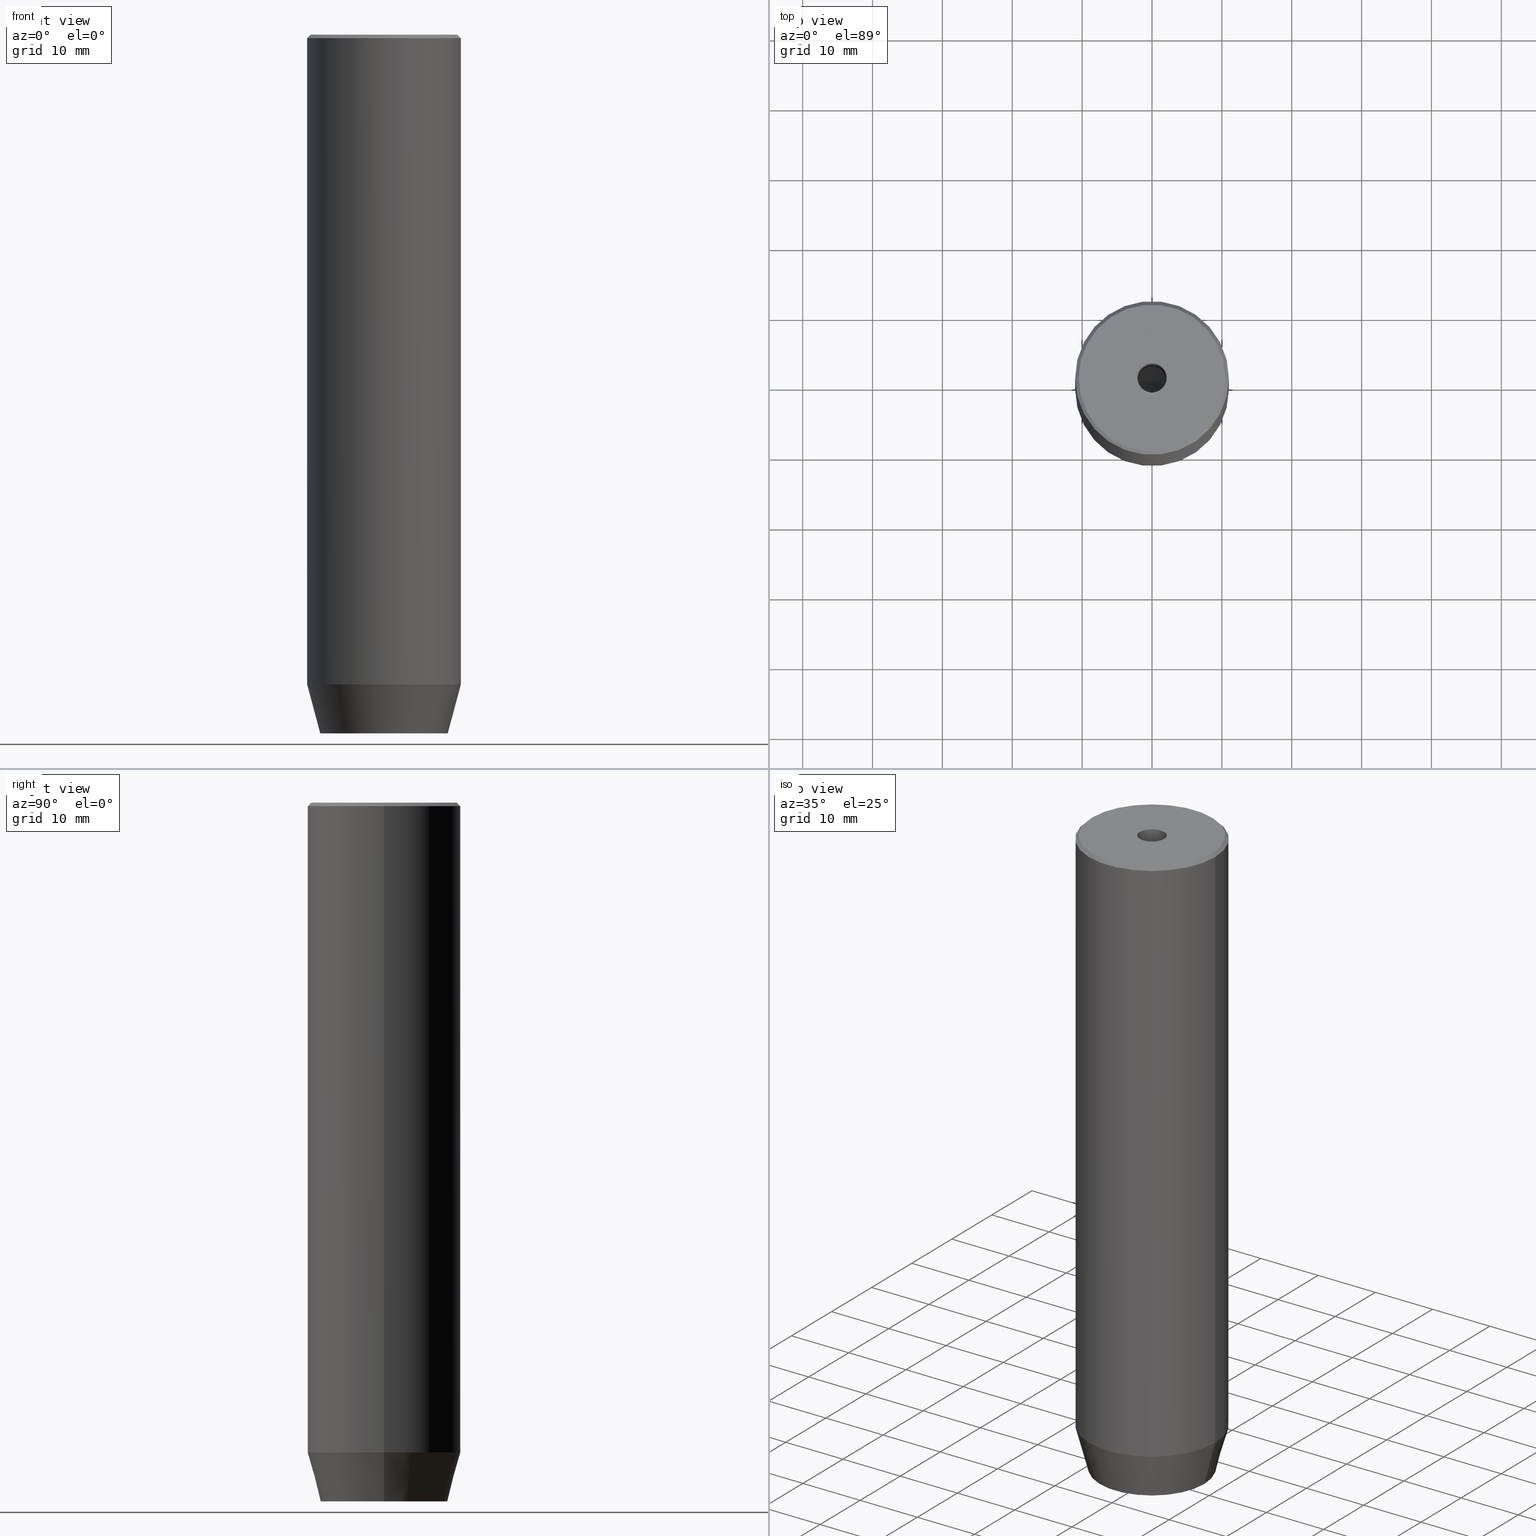
[diagram: canonical four-view strip — front | top / right | iso, engineering-drawing reading convention]
A machine part, canonical four-view strip (front | top / right | iso — engineering-drawing reading convention). The complete STEP part file that produces these views, byte-faithful:
ISO-10303-21;
HEADER;
FILE_DESCRIPTION (( 'STEP AP203' ),
    '1' );
FILE_NAME ('dd99.STEP',
    '2024-01-02T19:01:41',
    ( '' ),
    ( '' ),
    'SwSTEP 2.0',
    'SolidWorks 2019',
    '' );
FILE_SCHEMA (( 'CONFIG_CONTROL_DESIGN' ));
ENDSEC;

DATA;
#1 = SECURITY_CLASSIFICATION_LEVEL ( 'unclassified' ) ;
#2 = ORIENTED_EDGE ( 'NONE', *, *, #297, .T. ) ;
#3 = ADVANCED_FACE ( 'NONE', ( #77 ), #571, .T. ) ;
#4 = CARTESIAN_POINT ( 'NONE',  ( 4.000000000000000000, -2.309401076758502480, -97.20000000000000284 ) ) ;
#5 = COORDINATED_UNIVERSAL_TIME_OFFSET ( 1, 0, .AHEAD. ) ;
#6 = ORIENTED_EDGE ( 'NONE', *, *, #469, .F. ) ;
#7 = ORIENTED_EDGE ( 'NONE', *, *, #49, .F. ) ;
#8 = DIRECTION ( 'NONE',  ( -0.7071067811865500152, 0.000000000000000000, -0.7071067811865451302 ) ) ;
#9 = VECTOR ( 'NONE', #79, 1000.000000000000000 ) ;
#10 = DATE_AND_TIME ( #196, #394 ) ;
#11 = EDGE_LOOP ( 'NONE', ( #232, #71, #379, #302 ) ) ;
#12 = LINE ( 'NONE', #331, #581 ) ;
#13 = EDGE_CURVE ( 'NONE', #449, #559, #83, .T. ) ;
#14 = ORIENTED_EDGE ( 'NONE', *, *, #90, .F. ) ;
#15 = DIRECTION ( 'NONE',  ( -0.000000000000000000, -0.000000000000000000, 1.000000000000000000 ) ) ;
#16 = ORIENTED_EDGE ( 'NONE', *, *, #184, .F. ) ;
#17 = CARTESIAN_POINT ( 'NONE',  ( -11.00000000000000000, 1.347111479062088405E-15, -0.5000000000000004441 ) ) ;
#18 = EDGE_LOOP ( 'NONE', ( #514, #24, #14, #113, #155, #6 ) ) ;
#19 = LINE ( 'NONE', #116, #548 ) ;
#20 = CONICAL_SURFACE ( 'NONE', #95, 11.00000000000000000, 0.2617993877991500740 ) ;
#21 = ORGANIZATION ( 'NEUR�EN�', 'NEUR�EN�', '' ) ;
#22 = EDGE_LOOP ( 'NONE', ( #299, #512, #194 ) ) ;
#23 = EDGE_LOOP ( 'NONE', ( #159, #300 ) ) ;
#24 = ORIENTED_EDGE ( 'NONE', *, *, #114, .F. ) ;
#25 = EDGE_LOOP ( 'NONE', ( #357, #441, #341, #257 ) ) ;
#26 = APPROVAL ( #328, 'NEUR�EN�' ) ;
#27 = EDGE_CURVE ( 'NONE', #259, #226, #436, .T. ) ;
#28 = CARTESIAN_POINT ( 'NONE',  ( 0.000000000000000000, 0.000000000000000000, -97.20000000000000284 ) ) ;
#29 = CARTESIAN_POINT ( 'NONE',  ( 0.000000000000000000, 0.000000000000000000, -1.990051048614449116E-16 ) ) ;
#30 = DIRECTION ( 'NONE',  ( -0.000000000000000000, -0.000000000000000000, 1.000000000000000000 ) ) ;
#31 = ORIENTED_EDGE ( 'NONE', *, *, #440, .F. ) ;
#32 = FACE_OUTER_BOUND ( 'NONE', #411, .T. ) ;
#33 = LINE ( 'NONE', #309, #295 ) ;
#34 = CARTESIAN_POINT ( 'NONE',  ( -2.000000000000000888, -3.464101615137754386, -97.20000000000000284 ) ) ;
#35 = VECTOR ( 'NONE', #325, 1000.000000000000114 ) ;
#36 = CIRCLE ( 'NONE', #129, 2.099999999999998757 ) ;
#37 = FACE_OUTER_BOUND ( 'NONE', #535, .T. ) ;
#38 = DIRECTION ( 'NONE',  ( 1.000000000000000000, 0.000000000000000000, 0.000000000000000000 ) ) ;
#39 = CARTESIAN_POINT ( 'NONE',  ( -4.000000000000000000, 0.000000000000000000, -97.20000000000000284 ) ) ;
#40 = DIRECTION ( 'NONE',  ( -0.000000000000000000, -0.000000000000000000, 1.000000000000000000 ) ) ;
#41 = FACE_OUTER_BOUND ( 'NONE', #523, .T. ) ;
#42 = COORDINATED_UNIVERSAL_TIME_OFFSET ( 1, 0, .AHEAD. ) ;
#43 = APPROVAL ( #452, 'NEUR�EN�' ) ;
#44 = CARTESIAN_POINT ( 'NONE',  ( -9.124355652982133691, 1.232261386766375507E-15, -100.0000000000000000 ) ) ;
#45 = PLANE ( 'NONE',  #573 ) ;
#46 = VECTOR ( 'NONE', #350, 1000.000000000000000 ) ;
#47 = MECHANICAL_CONTEXT ( 'NONE', #178, 'mechanical' ) ;
#48 = LINE ( 'NONE', #193, #264 ) ;
#49 = EDGE_CURVE ( 'NONE', #429, #470, #482, .T. ) ;
#50 = CARTESIAN_POINT ( 'NONE',  ( 2.000000000000000444, 3.464101615137754386, -97.20000000000000284 ) ) ;
#51 = APPROVAL_ROLE ( '' ) ;
#52 = CARTESIAN_POINT ( 'NONE',  ( -10.49999999999999467, 0.000000000000000000, 0.000000000000000000 ) ) ;
#53 = PERSON_AND_ORGANIZATION_ROLE ( 'creator' ) ;
#54 = ORIENTED_EDGE ( 'NONE', *, *, #13, .T. ) ;
#55 = ORIENTED_EDGE ( 'NONE', *, *, #444, .F. ) ;
#56 = DIRECTION ( 'NONE',  ( 0.000000000000000000, 0.000000000000000000, 1.000000000000000000 ) ) ;
#57 = LINE ( 'NONE', #424, #518 ) ;
#58 = ORIENTED_EDGE ( 'NONE', *, *, #188, .T. ) ;
#59 = CARTESIAN_POINT ( 'NONE',  ( -2.099999999999995648, 2.571758278209436040E-16, -25.00000000000000000 ) ) ;
#60 = VERTEX_POINT ( 'NONE', #261 ) ;
#61 = LINE ( 'NONE', #475, #304 ) ;
#62 = DIRECTION ( 'NONE',  ( 0.000000000000000000, -1.000000000000000000, 0.000000000000000000 ) ) ;
#63 = CARTESIAN_POINT ( 'NONE',  ( 2.099999999999998757, 0.000000000000000000, -1.990051048614449116E-16 ) ) ;
#64 = ADVANCED_FACE ( 'NONE', ( #217 ), #128, .T. ) ;
#65 = CARTESIAN_POINT ( 'NONE',  ( -4.000000000000000000, -2.309401076758503368, -97.20000000000000284 ) ) ;
#66 = ORIENTED_EDGE ( 'NONE', *, *, #363, .T. ) ;
#67 = CARTESIAN_POINT ( 'NONE',  ( 0.000000000000000000, 0.000000000000000000, -100.0000000000000000 ) ) ;
#68 = DIRECTION ( 'NONE',  ( 1.000000000000000000, 0.000000000000000000, 0.000000000000000000 ) ) ;
#69 = CIRCLE ( 'NONE', #303, 10.49999999999999467 ) ;
#70 = VECTOR ( 'NONE', #381, 1000.000000000000000 ) ;
#71 = ORIENTED_EDGE ( 'NONE', *, *, #72, .F. ) ;
#72 = EDGE_CURVE ( 'NONE', #209, #349, #524, .T. ) ;
#73 = CARTESIAN_POINT ( 'NONE',  ( 0.000000000000000000, 0.000000000000000000, 0.000000000000000000 ) ) ;
#74 = CC_DESIGN_PERSON_AND_ORGANIZATION_ASSIGNMENT ( #542, #249, ( #561 ) ) ;
#75 = CLOSED_SHELL ( 'NONE', ( #564, #246, #500, #410, #3, #84, #288, #398, #130, #570, #403, #306, #166, #375, #271, #423, #64, #93, #533 ) ) ;
#76 = AXIS2_PLACEMENT_3D ( 'NONE', #192, #248, #387 ) ;
#77 = FACE_OUTER_BOUND ( 'NONE', #400, .T. ) ;
#78 = LOCAL_TIME ( 20, 1, 41.00000000000000000, #42 ) ;
#79 = DIRECTION ( 'NONE',  ( -0.000000000000000000, -0.000000000000000000, 1.000000000000000000 ) ) ;
#80 = DIRECTION ( 'NONE',  ( 1.000000000000000000, 0.000000000000000000, 0.000000000000000000 ) ) ;
#81 = ORIENTED_EDGE ( 'NONE', *, *, #440, .T. ) ;
#82 = LINE ( 'NONE', #287, #189 ) ;
#83 = CIRCLE ( 'NONE', #354, 2.099999999999998757 ) ;
#84 = ADVANCED_FACE ( 'NONE', ( #170, #174 ), #308, .T. ) ;
#85 = AXIS2_PLACEMENT_3D ( 'NONE', #281, #450, #190 ) ;
#86 = AXIS2_PLACEMENT_3D ( 'NONE', #377, #56, #332 ) ;
#87 = FACE_BOUND ( 'NONE', #471, .T. ) ;
#88 = CARTESIAN_POINT ( 'NONE',  ( 0.000000000000000000, 0.000000000000000000, -100.0000000000000000 ) ) ;
#89 = PLANE ( 'NONE',  #118 ) ;
#90 = EDGE_CURVE ( 'NONE', #214, #215, #33, .T. ) ;
#91 = PERSON_AND_ORGANIZATION ( #491, #21 ) ;
#92 = FACE_OUTER_BOUND ( 'NONE', #25, .T. ) ;
#93 = ADVANCED_FACE ( 'NONE', ( #269 ), #528, .F. ) ;
#94 = EDGE_CURVE ( 'NONE', #420, #112, #370, .T. ) ;
#95 = AXIS2_PLACEMENT_3D ( 'NONE', #185, #575, #38 ) ;
#96 = AXIS2_PLACEMENT_3D ( 'NONE', #39, #233, #187 ) ;
#97 = ORIENTED_EDGE ( 'NONE', *, *, #263, .F. ) ;
#98 = FACE_OUTER_BOUND ( 'NONE', #534, .T. ) ;
#99 = CIRCLE ( 'NONE', #584, 9.124355652982133691 ) ;
#100 = APPLICATION_PROTOCOL_DEFINITION ( 'international standard', 'config_control_design', 1994, #171 ) ;
#101 = CARTESIAN_POINT ( 'NONE',  ( 4.000000000000000000, -2.309401076758502480, -100.0000000000000000 ) ) ;
#102 = DIRECTION ( 'NONE',  ( 0.2588190451025213501, 0.000000000000000000, 0.9659258262890680902 ) ) ;
#103 = ORIENTED_EDGE ( 'NONE', *, *, #181, .T. ) ;
#104 = ORIENTED_EDGE ( 'NONE', *, *, #351, .F. ) ;
#105 =( LENGTH_UNIT ( ) NAMED_UNIT ( * ) SI_UNIT ( .MILLI., .METRE. ) );
#106 = VERTEX_POINT ( 'NONE', #366 ) ;
#107 = VECTOR ( 'NONE', #134, 1000.000000000000000 ) ;
#108 = CONICAL_SURFACE ( 'NONE', #356, 10.49999999999999467, 0.7853981633974517207 ) ;
#109 = CARTESIAN_POINT ( 'NONE',  ( 4.000000000000000000, 0.000000000000000000, -97.20000000000000284 ) ) ;
#110 = ORIENTED_EDGE ( 'NONE', *, *, #177, .F. ) ;
#111 = CYLINDRICAL_SURFACE ( 'NONE', #237, 2.099999999999996980 ) ;
#112 = VERTEX_POINT ( 'NONE', #101 ) ;
#113 = ORIENTED_EDGE ( 'NONE', *, *, #121, .F. ) ;
#114 = EDGE_CURVE ( 'NONE', #215, #349, #48, .T. ) ;
#115 = ORIENTED_EDGE ( 'NONE', *, *, #222, .F. ) ;
#116 = CARTESIAN_POINT ( 'NONE',  ( 2.000000000000000444, 3.464101615137754386, -100.0000000000000000 ) ) ;
#117 = CIRCLE ( 'NONE', #197, 11.00000000000000000 ) ;
#118 = AXIS2_PLACEMENT_3D ( 'NONE', #454, #279, #327 ) ;
#119 = AXIS2_PLACEMENT_3D ( 'NONE', #211, #122, #555 ) ;
#120 = ORIENTED_EDGE ( 'NONE', *, *, #435, .T. ) ;
#121 = EDGE_CURVE ( 'NONE', #112, #214, #487, .T. ) ;
#122 = DIRECTION ( 'NONE',  ( 0.000000000000000000, 0.000000000000000000, -1.000000000000000000 ) ) ;
#123 = ORIENTED_EDGE ( 'NONE', *, *, #462, .F. ) ;
#124 = EDGE_CURVE ( 'NONE', #349, #203, #82, .T. ) ;
#125 = CARTESIAN_POINT ( 'NONE',  ( -4.000000000000000000, 2.309401076758503368, -97.20000000000000284 ) ) ;
#126 = DIRECTION ( 'NONE',  ( -1.000000000000000000, 0.000000000000000000, -0.000000000000000000 ) ) ;
#127 = VECTOR ( 'NONE', #565, 1000.000000000000000 ) ;
#128 = PLANE ( 'NONE',  #212 ) ;
#129 = AXIS2_PLACEMENT_3D ( 'NONE', #29, #221, #560 ) ;
#130 = ADVANCED_FACE ( 'NONE', ( #453 ), #20, .T. ) ;
#131 = CARTESIAN_POINT ( 'NONE',  ( 0.000000000000000000, 0.000000000000000000, -1.990051048614449116E-16 ) ) ;
#132 = EDGE_CURVE ( 'NONE', #201, #167, #495, .T. ) ;
#133 = DIRECTION ( 'NONE',  ( -0.000000000000000000, -0.000000000000000000, 1.000000000000000000 ) ) ;
#134 = DIRECTION ( 'NONE',  ( 0.000000000000000000, -1.000000000000000000, 0.000000000000000000 ) ) ;
#135 = VECTOR ( 'NONE', #578, 1000.000000000000114 ) ;
#136 = AXIS2_PLACEMENT_3D ( 'NONE', #272, #405, #278 ) ;
#137 = FACE_OUTER_BOUND ( 'NONE', #465, .T. ) ;
#138 = PERSON_AND_ORGANIZATION_ROLE ( 'classification_officer' ) ;
#139 = ORIENTED_EDGE ( 'NONE', *, *, #241, .T. ) ;
#140 = PLANE ( 'NONE',  #342 ) ;
#141 = CARTESIAN_POINT ( 'NONE',  ( 2.000000000000000888, -3.464101615137754386, -97.20000000000000284 ) ) ;
#142 = LINE ( 'NONE', #550, #250 ) ;
#143 = APPROVAL_ROLE ( '' ) ;
#144 = DIRECTION ( 'NONE',  ( 1.000000000000000000, 0.000000000000000000, 0.000000000000000000 ) ) ;
#145 = VECTOR ( 'NONE', #315, 1000.000000000000114 ) ;
#146 = VECTOR ( 'NONE', #448, 1000.000000000000000 ) ;
#147 = DIRECTION ( 'NONE',  ( 1.000000000000000000, 0.000000000000000000, 0.000000000000000000 ) ) ;
#148 = SECURITY_CLASSIFICATION ( '', '', #1 ) ;
#149 = SHAPE_DEFINITION_REPRESENTATION ( #253, #543 ) ;
#150 = ORIENTED_EDGE ( 'NONE', *, *, #488, .T. ) ;
#151 = EDGE_LOOP ( 'NONE', ( #293, #348, #115, #66 ) ) ;
#152 = DIRECTION ( 'NONE',  ( -0.8660254037844385966, 0.5000000000000001110, 0.000000000000000000 ) ) ;
#153 = CALENDAR_DATE ( 2024, 2, 1 ) ;
#154 = ORIENTED_EDGE ( 'NONE', *, *, #235, .T. ) ;
#155 = ORIENTED_EDGE ( 'NONE', *, *, #94, .F. ) ;
#156 = DIRECTION ( 'NONE',  ( 0.8660254037844385966, -0.5000000000000001110, 0.000000000000000000 ) ) ;
#157 = ORIENTED_EDGE ( 'NONE', *, *, #177, .T. ) ;
#158 = APPLICATION_PROTOCOL_DEFINITION ( 'international standard', 'config_control_design', 1994, #178 ) ;
#159 = ORIENTED_EDGE ( 'NONE', *, *, #132, .F. ) ;
#160 = CC_DESIGN_DATE_AND_TIME_ASSIGNMENT ( #464, #551, ( #577 ) ) ;
#161 = CARTESIAN_POINT ( 'NONE',  ( 11.00000000000000000, 0.000000000000000000, -0.5000000000000004441 ) ) ;
#162 = APPROVAL_PERSON_ORGANIZATION ( #419, #26, #51 ) ;
#163 = LINE ( 'NONE', #345, #508 ) ;
#164 = ORIENTED_EDGE ( 'NONE', *, *, #234, .F. ) ;
#165 = DIRECTION ( 'NONE',  ( 1.000000000000000000, 0.000000000000000000, 0.000000000000000000 ) ) ;
#166 = ADVANCED_FACE ( 'NONE', ( #416 ), #414, .F. ) ;
#167 = VERTEX_POINT ( 'NONE', #44 ) ;
#168 = ORIENTED_EDGE ( 'NONE', *, *, #337, .F. ) ;
#169 = CYLINDRICAL_SURFACE ( 'NONE', #199, 2.099999999999996980 ) ;
#170 = FACE_BOUND ( 'NONE', #18, .T. ) ;
#171 = APPLICATION_CONTEXT ( 'configuration controlled 3d designs of mechanical parts and assemblies' ) ;
#172 = VECTOR ( 'NONE', #401, 1000.000000000000114 ) ;
#173 = CC_DESIGN_PERSON_AND_ORGANIZATION_ASSIGNMENT ( #91, #418, ( #213 ) ) ;
#174 = FACE_OUTER_BOUND ( 'NONE', #23, .T. ) ;
#175 = VERTEX_POINT ( 'NONE', #532 ) ;
#176 = DIRECTION ( 'NONE',  ( -0.000000000000000000, -0.000000000000000000, 1.000000000000000000 ) ) ;
#177 = EDGE_CURVE ( 'NONE', #60, #352, #69, .T. ) ;
#178 = APPLICATION_CONTEXT ( 'configuration controlled 3d designs of mechanical parts and assemblies' ) ;
#179 = ORIENTED_EDGE ( 'NONE', *, *, #530, .T. ) ;
#180 = AXIS2_PLACEMENT_3D ( 'NONE', #459, #492, #147 ) ;
#181 = EDGE_CURVE ( 'NONE', #60, #510, #191, .T. ) ;
#182 = DIRECTION ( 'NONE',  ( 0.8660254037844384856, -0.5000000000000002220, 0.000000000000000000 ) ) ;
#183 = LINE ( 'NONE', #225, #146 ) ;
#184 = EDGE_CURVE ( 'NONE', #396, #259, #540, .T. ) ;
#185 = CARTESIAN_POINT ( 'NONE',  ( 0.000000000000000000, 0.000000000000000000, -93.00000000000000000 ) ) ;
#186 = ORIENTED_EDGE ( 'NONE', *, *, #184, .T. ) ;
#187 = DIRECTION ( 'NONE',  ( 0.000000000000000000, 0.000000000000000000, 1.000000000000000000 ) ) ;
#188 = EDGE_CURVE ( 'NONE', #175, #552, #493, .T. ) ;
#189 = VECTOR ( 'NONE', #378, 999.9999999999998863 ) ;
#190 = DIRECTION ( 'NONE',  ( 1.000000000000000000, 0.000000000000000000, 0.000000000000000000 ) ) ;
#191 = LINE ( 'NONE', #374, #145 ) ;
#192 = CARTESIAN_POINT ( 'NONE',  ( 0.000000000000000000, 0.000000000000000000, -25.00000000000000000 ) ) ;
#193 = CARTESIAN_POINT ( 'NONE',  ( -4.000000000000000000, 0.000000000000000000, -100.0000000000000000 ) ) ;
#194 = ORIENTED_EDGE ( 'NONE', *, *, #263, .T. ) ;
#195 = CARTESIAN_POINT ( 'NONE',  ( 0.000000000000000000, 0.000000000000000000, -0.5000000000000004441 ) ) ;
#196 = CALENDAR_DATE ( 2024, 2, 1 ) ;
#197 = AXIS2_PLACEMENT_3D ( 'NONE', #361, #445, #80 ) ;
#198 = CARTESIAN_POINT ( 'NONE',  ( -4.000000000000000000, -2.309401076758503368, -97.20000000000000284 ) ) ;
#199 = AXIS2_PLACEMENT_3D ( 'NONE', #73, #262, #68 ) ;
#200 = CALENDAR_DATE ( 2024, 2, 1 ) ;
#201 = VERTEX_POINT ( 'NONE', #447 ) ;
#202 =( NAMED_UNIT ( * ) PLANE_ANGLE_UNIT ( ) SI_UNIT ( $, .RADIAN. ) );
#203 = VERTEX_POINT ( 'NONE', #208 ) ;
#204 = DIRECTION ( 'NONE',  ( -0.000000000000000000, -0.000000000000000000, 1.000000000000000000 ) ) ;
#205 = EDGE_CURVE ( 'NONE', #175, #460, #244, .T. ) ;
#206 = ORIENTED_EDGE ( 'NONE', *, *, #546, .T. ) ;
#207 = DIRECTION ( 'NONE',  ( 1.000000000000000000, 0.000000000000000000, 0.000000000000000000 ) ) ;
#208 = CARTESIAN_POINT ( 'NONE',  ( 2.168404344971008868E-16, 4.618802153517006737, -100.0000000000000000 ) ) ;
#209 = VERTEX_POINT ( 'NONE', #125 ) ;
#210 = DIRECTION ( 'NONE',  ( -1.000000000000000000, 0.000000000000000000, 0.000000000000000000 ) ) ;
#211 = CARTESIAN_POINT ( 'NONE',  ( 0.000000000000000000, 0.000000000000000000, 0.000000000000000000 ) ) ;
#212 = AXIS2_PLACEMENT_3D ( 'NONE', #28, #358, #433 ) ;
#213 = PRODUCT_DEFINITION_FORMATION_WITH_SPECIFIED_SOURCE ( 'LIBOVOLN�', '', #561, .NOT_KNOWN. ) ;
#214 = VERTEX_POINT ( 'NONE', #333 ) ;
#215 = VERTEX_POINT ( 'NONE', #499 ) ;
#216 = CARTESIAN_POINT ( 'NONE',  ( 2.099999999999995648, 0.000000000000000000, -25.00000000000000000 ) ) ;
#217 = FACE_OUTER_BOUND ( 'NONE', #422, .T. ) ;
#218 = EDGE_LOOP ( 'NONE', ( #544, #139, #179, #168 ) ) ;
#219 = LINE ( 'NONE', #472, #46 ) ;
#220 = CARTESIAN_POINT ( 'NONE',  ( -4.000000000000000000, 2.309401076758503368, -97.20000000000000284 ) ) ;
#221 = DIRECTION ( 'NONE',  ( -0.000000000000000000, -0.000000000000000000, 1.000000000000000000 ) ) ;
#222 = EDGE_CURVE ( 'NONE', #531, #396, #336, .T. ) ;
#223 = LOCAL_TIME ( 20, 1, 41.00000000000000000, #324 ) ;
#224 = DIRECTION ( 'NONE',  ( -0.000000000000000000, -0.000000000000000000, 1.000000000000000000 ) ) ;
#225 = CARTESIAN_POINT ( 'NONE',  ( 2.000000000000000444, 3.464101615137754386, -97.20000000000000284 ) ) ;
#226 = VERTEX_POINT ( 'NONE', #65 ) ;
#227 = CC_DESIGN_PERSON_AND_ORGANIZATION_ASSIGNMENT ( #239, #53, ( #213 ) ) ;
#228 = DIRECTION ( 'NONE',  ( 1.000000000000000000, 0.000000000000000000, 0.000000000000000000 ) ) ;
#229 = DIRECTION ( 'NONE',  ( -0.000000000000000000, -0.000000000000000000, 1.000000000000000000 ) ) ;
#230 = EDGE_CURVE ( 'NONE', #226, #209, #57, .T. ) ;
#231 = CARTESIAN_POINT ( 'NONE',  ( -2.099999999999996980, 2.571758278209438013E-16, 0.000000000000000000 ) ) ;
#232 = ORIENTED_EDGE ( 'NONE', *, *, #114, .T. ) ;
#233 = DIRECTION ( 'NONE',  ( -1.000000000000000000, 0.000000000000000000, 0.000000000000000000 ) ) ;
#234 = EDGE_CURVE ( 'NONE', #106, #510, #163, .T. ) ;
#235 = EDGE_CURVE ( 'NONE', #510, #470, #117, .T. ) ;
#236 = DIRECTION ( 'NONE',  ( 0.000000000000000000, 0.000000000000000000, -1.000000000000000000 ) ) ;
#237 = AXIS2_PLACEMENT_3D ( 'NONE', #339, #256, #207 ) ;
#238 = DIRECTION ( 'NONE',  ( 0.5000000000000001110, 0.8660254037844385966, -0.000000000000000000 ) ) ;
#239 = PERSON_AND_ORGANIZATION ( #491, #21 ) ;
#240 = CARTESIAN_POINT ( 'NONE',  ( 2.000000000000000888, -3.464101615137754386, -100.0000000000000000 ) ) ;
#241 = EDGE_CURVE ( 'NONE', #552, #559, #265, .T. ) ;
#242 = LINE ( 'NONE', #417, #70 ) ;
#243 = PERSON_AND_ORGANIZATION_ROLE ( 'creator' ) ;
#244 = LINE ( 'NONE', #340, #437 ) ;
#245 = CC_DESIGN_DATE_AND_TIME_ASSIGNMENT ( #490, #415, ( #148 ) ) ;
#246 = ADVANCED_FACE ( 'NONE', ( #37 ), #507, .F. ) ;
#247 = EDGE_LOOP ( 'NONE', ( #254, #104, #505, #502 ) ) ;
#248 = DIRECTION ( 'NONE',  ( -0.000000000000000000, -0.000000000000000000, 1.000000000000000000 ) ) ;
#249 = PERSON_AND_ORGANIZATION_ROLE ( 'design_owner' ) ;
#250 = VECTOR ( 'NONE', #323, 1000.000000000000000 ) ;
#251 = ORIENTED_EDGE ( 'NONE', *, *, #481, .T. ) ;
#252 = FACE_OUTER_BOUND ( 'NONE', #563, .T. ) ;
#253 = PRODUCT_DEFINITION_SHAPE ( 'NONE', 'NONE',  #577 ) ;
#254 = ORIENTED_EDGE ( 'NONE', *, *, #90, .T. ) ;
#255 = ORIENTED_EDGE ( 'NONE', *, *, #363, .F. ) ;
#256 = DIRECTION ( 'NONE',  ( -0.000000000000000000, -0.000000000000000000, 1.000000000000000000 ) ) ;
#257 = ORIENTED_EDGE ( 'NONE', *, *, #72, .T. ) ;
#258 = CARTESIAN_POINT ( 'NONE',  ( 0.000000000000000000, 0.000000000000000000, -93.00000000000000000 ) ) ;
#259 = VERTEX_POINT ( 'NONE', #359 ) ;
#260 = EDGE_CURVE ( 'NONE', #259, #214, #270, .T. ) ;
#261 = CARTESIAN_POINT ( 'NONE',  ( 10.49999999999999467, 1.316495309083404420E-15, 0.000000000000000000 ) ) ;
#262 = DIRECTION ( 'NONE',  ( -0.000000000000000000, -0.000000000000000000, 1.000000000000000000 ) ) ;
#263 = EDGE_CURVE ( 'NONE', #460, #552, #283, .T. ) ;
#264 = VECTOR ( 'NONE', #280, 1000.000000000000000 ) ;
#265 = LINE ( 'NONE', #231, #9 ) ;
#266 = VECTOR ( 'NONE', #442, 1000.000000000000000 ) ;
#267 = CIRCLE ( 'NONE', #76, 2.099999999999995648 ) ;
#268 = CC_DESIGN_PERSON_AND_ORGANIZATION_ASSIGNMENT ( #585, #243, ( #577 ) ) ;
#269 = FACE_OUTER_BOUND ( 'NONE', #22, .T. ) ;
#270 = LINE ( 'NONE', #311, #266 ) ;
#271 = ADVANCED_FACE ( 'NONE', ( #485 ), #438, .F. ) ;
#272 = CARTESIAN_POINT ( 'NONE',  ( 0.000000000000000000, 0.000000000000000000, -25.00000000000000000 ) ) ;
#273 = MANIFOLD_SOLID_BREP ( 'Vrt�k z�vitn�ku pro M5 z�vit1', #75 ) ;
#274 = ORIENTED_EDGE ( 'NONE', *, *, #234, .T. ) ;
#275 = DIRECTION ( 'NONE',  ( -0.8571673007021108903, 1.049727191138616847E-16, 0.5150380749100565980 ) ) ;
#276 = CIRCLE ( 'NONE', #371, 11.00000000000000000 ) ;
#277 = APPROVAL ( #412, 'NEUR�EN�' ) ;
#278 = DIRECTION ( 'NONE',  ( 1.000000000000000000, 0.000000000000000000, 0.000000000000000000 ) ) ;
#279 = DIRECTION ( 'NONE',  ( -0.5000000000000000000, 0.8660254037844387076, 0.000000000000000000 ) ) ;
#280 = DIRECTION ( 'NONE',  ( 0.000000000000000000, 1.000000000000000000, 0.000000000000000000 ) ) ;
#281 = CARTESIAN_POINT ( 'NONE',  ( 0.000000000000000000, 0.000000000000000000, -93.00000000000000000 ) ) ;
#282 = CALENDAR_DATE ( 2024, 2, 1 ) ;
#283 = CIRCLE ( 'NONE', #509, 2.099999999999995648 ) ;
#284 = CC_DESIGN_APPROVAL ( #26, ( #148 ) ) ;
#285 = DIRECTION ( 'NONE',  ( 0.5000000000000003331, -0.8660254037844385966, 0.000000000000000000 ) ) ;
#286 = PERSON_AND_ORGANIZATION ( #491, #21 ) ;
#287 = CARTESIAN_POINT ( 'NONE',  ( -2.000000000000000000, 3.464101615137754830, -100.0000000000000000 ) ) ;
#288 = ADVANCED_FACE ( 'NONE', ( #87, #32 ), #407, .T. ) ;
#289 = ORIENTED_EDGE ( 'NONE', *, *, #481, .F. ) ;
#290 = CARTESIAN_POINT ( 'NONE',  ( 0.000000000000000000, 4.618802153517006737, -97.20000000000000284 ) ) ;
#291 = LINE ( 'NONE', #52, #408 ) ;
#292 = CARTESIAN_POINT ( 'NONE',  ( 11.00000000000000000, 0.000000000000000000, -93.00000000000000000 ) ) ;
#293 = ORIENTED_EDGE ( 'NONE', *, *, #94, .T. ) ;
#294 = CARTESIAN_POINT ( 'NONE',  ( 0.000000000000000000, 4.618802153517006737, -97.20000000000000284 ) ) ;
#295 = VECTOR ( 'NONE', #479, 1000.000000000000114 ) ;
#296 = ORIENTED_EDGE ( 'NONE', *, *, #462, .T. ) ;
#297 = EDGE_CURVE ( 'NONE', #554, #531, #183, .T. ) ;
#298 = ORIENTED_EDGE ( 'NONE', *, *, #49, .T. ) ;
#299 = ORIENTED_EDGE ( 'NONE', *, *, #188, .F. ) ;
#300 = ORIENTED_EDGE ( 'NONE', *, *, #587, .F. ) ;
#301 = DIRECTION ( 'NONE',  ( 1.000000000000000000, 0.000000000000000000, 0.000000000000000000 ) ) ;
#302 = ORIENTED_EDGE ( 'NONE', *, *, #351, .T. ) ;
#303 = AXIS2_PLACEMENT_3D ( 'NONE', #586, #133, #580 ) ;
#304 = VECTOR ( 'NONE', #307, 999.9999999999998863 ) ;
#305 = ORIENTED_EDGE ( 'NONE', *, *, #525, .F. ) ;
#306 = ADVANCED_FACE ( 'NONE', ( #526 ), #568, .F. ) ;
#307 = DIRECTION ( 'NONE',  ( 0.8660254037844387076, 0.5000000000000001110, 0.000000000000000000 ) ) ;
#308 = PLANE ( 'NONE',  #455 ) ;
#309 = CARTESIAN_POINT ( 'NONE',  ( -2.000000000000000888, -3.464101615137754386, -100.0000000000000000 ) ) ;
#310 = AXIS2_PLACEMENT_3D ( 'NONE', #478, #229, #365 ) ;
#311 = CARTESIAN_POINT ( 'NONE',  ( 4.336808689942017736E-16, -4.618802153517006737, -97.20000000000000284 ) ) ;
#312 = CARTESIAN_POINT ( 'NONE',  ( 4.000000000000000000, 0.000000000000000000, -97.20000000000000284 ) ) ;
#313 = EDGE_LOOP ( 'NONE', ( #110, #103, #468, #55 ) ) ;
#314 = DIRECTION ( 'NONE',  ( 0.000000000000000000, -0.000000000000000000, 1.000000000000000000 ) ) ;
#315 = DIRECTION ( 'NONE',  ( 0.7071067811865500152, 8.659560562354962440E-17, -0.7071067811865451302 ) ) ;
#316 = AXIS2_PLACEMENT_3D ( 'NONE', #527, #406, #569 ) ;
#317 = CONICAL_SURFACE ( 'NONE', #85, 11.00000000000000000, 0.2617993877991500740 ) ;
#318 = CC_DESIGN_APPROVAL ( #43, ( #213 ) ) ;
#319 = EDGE_CURVE ( 'NONE', #552, #460, #267, .T. ) ;
#320 = DIRECTION ( 'NONE',  ( -0.000000000000000000, -0.000000000000000000, -1.000000000000000000 ) ) ;
#321 = CALENDAR_DATE ( 2024, 2, 1 ) ;
#322 = DIRECTION ( 'NONE',  ( -0.5000000000000003331, -0.8660254037844385966, 0.000000000000000000 ) ) ;
#323 = DIRECTION ( 'NONE',  ( -0.000000000000000000, -0.000000000000000000, -1.000000000000000000 ) ) ;
#324 = COORDINATED_UNIVERSAL_TIME_OFFSET ( 1, 0, .AHEAD. ) ;
#325 = DIRECTION ( 'NONE',  ( -0.8660254037844384856, -0.5000000000000002220, 0.000000000000000000 ) ) ;
#326 = ORIENTED_EDGE ( 'NONE', *, *, #205, .F. ) ;
#327 = DIRECTION ( 'NONE',  ( -0.8660254037844385966, -0.4999999999999999445, 0.000000000000000000 ) ) ;
#328 = APPROVAL_STATUS ( 'not_yet_approved' ) ;
#329 = AXIS2_PLACEMENT_3D ( 'NONE', #34, #322, #182 ) ;
#330 = AXIS2_PLACEMENT_3D ( 'NONE', #195, #236, #372 ) ;
#331 = CARTESIAN_POINT ( 'NONE',  ( 2.099999999999996980, 0.000000000000000000, 0.000000000000000000 ) ) ;
#332 = DIRECTION ( 'NONE',  ( 1.000000000000000000, 0.000000000000000000, 0.000000000000000000 ) ) ;
#333 = CARTESIAN_POINT ( 'NONE',  ( 4.336808689942017736E-16, -4.618802153517006737, -100.0000000000000000 ) ) ;
#334 = ORIENTED_EDGE ( 'NONE', *, *, #530, .F. ) ;
#335 = ORIENTED_EDGE ( 'NONE', *, *, #181, .F. ) ;
#336 = LINE ( 'NONE', #109, #383 ) ;
#337 = EDGE_CURVE ( 'NONE', #460, #449, #12, .T. ) ;
#338 = ORIENTED_EDGE ( 'NONE', *, *, #337, .T. ) ;
#339 = CARTESIAN_POINT ( 'NONE',  ( 0.000000000000000000, 0.000000000000000000, 0.000000000000000000 ) ) ;
#340 = CARTESIAN_POINT ( 'NONE',  ( 2.099999999999995648, 0.000000000000000000, -25.00000000000000000 ) ) ;
#341 = ORIENTED_EDGE ( 'NONE', *, *, #451, .F. ) ;
#342 = AXIS2_PLACEMENT_3D ( 'NONE', #494, #285, #489 ) ;
#343 = ORIENTED_EDGE ( 'NONE', *, *, #525, .T. ) ;
#344 = LOCAL_TIME ( 20, 1, 41.00000000000000000, #539 ) ;
#345 = CARTESIAN_POINT ( 'NONE',  ( 11.00000000000000000, 0.000000000000000000, 0.000000000000000000 ) ) ;
#346 = ORIENTED_EDGE ( 'NONE', *, *, #297, .F. ) ;
#347 = CARTESIAN_POINT ( 'NONE',  ( 0.000000000000000000, 0.000000000000000000, -93.00000000000000000 ) ) ;
#348 = ORIENTED_EDGE ( 'NONE', *, *, #488, .F. ) ;
#349 = VERTEX_POINT ( 'NONE', #376 ) ;
#350 = DIRECTION ( 'NONE',  ( -0.000000000000000000, -0.000000000000000000, -1.000000000000000000 ) ) ;
#351 = EDGE_CURVE ( 'NONE', #226, #215, #463, .T. ) ;
#352 = VERTEX_POINT ( 'NONE', #541 ) ;
#353 = ORIENTED_EDGE ( 'NONE', *, *, #132, .T. ) ;
#354 = AXIS2_PLACEMENT_3D ( 'NONE', #131, #360, #476 ) ;
#355 = AXIS2_PLACEMENT_3D ( 'NONE', #574, #314, #576 ) ;
#356 = AXIS2_PLACEMENT_3D ( 'NONE', #557, #553, #210 ) ;
#357 = ORIENTED_EDGE ( 'NONE', *, *, #124, .T. ) ;
#358 = DIRECTION ( 'NONE',  ( 0.000000000000000000, 0.000000000000000000, -1.000000000000000000 ) ) ;
#359 = CARTESIAN_POINT ( 'NONE',  ( 4.336808689942017736E-16, -4.618802153517006737, -97.20000000000000284 ) ) ;
#360 = DIRECTION ( 'NONE',  ( -0.000000000000000000, -0.000000000000000000, 1.000000000000000000 ) ) ;
#361 = CARTESIAN_POINT ( 'NONE',  ( 0.000000000000000000, 0.000000000000000000, -0.5000000000000004441 ) ) ;
#362 = AXIS2_PLACEMENT_3D ( 'NONE', #312, #536, #409 ) ;
#363 = EDGE_CURVE ( 'NONE', #531, #420, #142, .T. ) ;
#364 = CC_DESIGN_SECURITY_CLASSIFICATION ( #148, ( #213 ) ) ;
#365 = DIRECTION ( 'NONE',  ( 1.000000000000000000, 0.000000000000000000, 0.000000000000000000 ) ) ;
#366 = CARTESIAN_POINT ( 'NONE',  ( 11.00000000000000000, 0.000000000000000000, -93.00000000000000000 ) ) ;
#367 = PRODUCT_RELATED_PRODUCT_CATEGORY ( 'detail', '', ( #561 ) ) ;
#368 = VECTOR ( 'NONE', #275, 1000.000000000000114 ) ;
#369 = PERSON_AND_ORGANIZATION ( #491, #21 ) ;
#370 = LINE ( 'NONE', #538, #107 ) ;
#371 = AXIS2_PLACEMENT_3D ( 'NONE', #347, #395, #513 ) ;
#372 = DIRECTION ( 'NONE',  ( 1.000000000000000000, 0.000000000000000000, 0.000000000000000000 ) ) ;
#373 = PERSON_AND_ORGANIZATION ( #491, #21 ) ;
#374 = CARTESIAN_POINT ( 'NONE',  ( 10.49999999999999467, 1.285879139104720239E-15, 0.000000000000000000 ) ) ;
#375 = ADVANCED_FACE ( 'NONE', ( #137 ), #140, .F. ) ;
#376 = CARTESIAN_POINT ( 'NONE',  ( -4.000000000000000000, 2.309401076758503368, -100.0000000000000000 ) ) ;
#377 = CARTESIAN_POINT ( 'NONE',  ( 0.000000000000000000, 0.000000000000000000, 0.000000000000000000 ) ) ;
#378 = DIRECTION ( 'NONE',  ( 0.8660254037844387076, 0.5000000000000001110, 0.000000000000000000 ) ) ;
#379 = ORIENTED_EDGE ( 'NONE', *, *, #230, .F. ) ;
#380 = ORIENTED_EDGE ( 'NONE', *, *, #435, .F. ) ;
#381 = DIRECTION ( 'NONE',  ( -0.2588190451025213501, 3.169619151431772337E-17, 0.9659258262890680902 ) ) ;
#382 = APPROVAL_DATE_TIME ( #10, #26 ) ;
#383 = VECTOR ( 'NONE', #62, 1000.000000000000000 ) ;
#384 = CIRCLE ( 'NONE', #520, 11.00000000000000000 ) ;
#385 = ORIENTED_EDGE ( 'NONE', *, *, #235, .F. ) ;
#386 = AXIS2_PLACEMENT_3D ( 'NONE', #434, #390, #301 ) ;
#387 = DIRECTION ( 'NONE',  ( 1.000000000000000000, 0.000000000000000000, 0.000000000000000000 ) ) ;
#388 = DIRECTION ( 'NONE',  ( 0.8571673007021108903, 0.000000000000000000, 0.5150380749100565980 ) ) ;
#389 = EDGE_LOOP ( 'NONE', ( #425, #97, #338, #54 ) ) ;
#390 = DIRECTION ( 'NONE',  ( -0.000000000000000000, -0.000000000000000000, 1.000000000000000000 ) ) ;
#391 = DESIGN_CONTEXT ( 'detailed design', #171, 'design' ) ;
#392 = DIRECTION ( 'NONE',  ( 0.000000000000000000, 1.000000000000000000, 0.000000000000000000 ) ) ;
#393 = ORIENTED_EDGE ( 'NONE', *, *, #451, .T. ) ;
#394 = LOCAL_TIME ( 20, 1, 41.00000000000000000, #5 ) ;
#395 = DIRECTION ( 'NONE',  ( -0.000000000000000000, -0.000000000000000000, 1.000000000000000000 ) ) ;
#396 = VERTEX_POINT ( 'NONE', #4 ) ;
#397 = DIRECTION ( 'NONE',  ( 1.000000000000000000, 0.000000000000000000, 0.000000000000000000 ) ) ;
#398 = ADVANCED_FACE ( 'NONE', ( #98 ), #582, .T. ) ;
#399 = ORIENTED_EDGE ( 'NONE', *, *, #319, .T. ) ;
#400 = EDGE_LOOP ( 'NONE', ( #343, #298, #473, #164 ) ) ;
#401 = DIRECTION ( 'NONE',  ( -0.8660254037844384856, 0.5000000000000002220, 0.000000000000000000 ) ) ;
#402 = CIRCLE ( 'NONE', #330, 11.00000000000000000 ) ;
#403 = ADVANCED_FACE ( 'NONE', ( #92 ), #89, .F. ) ;
#404 = CARTESIAN_POINT ( 'NONE',  ( 0.000000000000000000, 9.124355652982133691, -100.0000000000000000 ) ) ;
#405 = DIRECTION ( 'NONE',  ( -0.000000000000000000, -0.000000000000000000, 1.000000000000000000 ) ) ;
#406 = DIRECTION ( 'NONE',  ( -0.000000000000000000, -0.000000000000000000, 1.000000000000000000 ) ) ;
#407 = PLANE ( 'NONE',  #355 ) ;
#408 = VECTOR ( 'NONE', #8, 1000.000000000000114 ) ;
#409 = DIRECTION ( 'NONE',  ( -0.000000000000000000, 0.000000000000000000, -1.000000000000000000 ) ) ;
#410 = ADVANCED_FACE ( 'NONE', ( #457 ), #317, .T. ) ;
#411 = EDGE_LOOP ( 'NONE', ( #251, #157 ) ) ;
#412 = APPROVAL_STATUS ( 'not_yet_approved' ) ;
#413 =( GEOMETRIC_REPRESENTATION_CONTEXT ( 3 ) GLOBAL_UNCERTAINTY_ASSIGNED_CONTEXT ( ( #504 ) ) GLOBAL_UNIT_ASSIGNED_CONTEXT ( ( #105, #202, #515 ) ) REPRESENTATION_CONTEXT ( 'NONE', 'WORKASPACE' ) );
#414 = PLANE ( 'NONE',  #329 ) ;
#415 = DATE_TIME_ROLE ( 'classification_date' ) ;
#416 = FACE_OUTER_BOUND ( 'NONE', #247, .T. ) ;
#417 = CARTESIAN_POINT ( 'NONE',  ( -11.00000000000000000, 1.347111479062088405E-15, -93.00000000000000000 ) ) ;
#418 = PERSON_AND_ORGANIZATION_ROLE ( 'design_supplier' ) ;
#419 = PERSON_AND_ORGANIZATION ( #491, #21 ) ;
#420 = VERTEX_POINT ( 'NONE', #497 ) ;
#421 = APPROVAL_PERSON_ORGANIZATION ( #373, #277, #143 ) ;
#422 = EDGE_LOOP ( 'NONE', ( #393, #2, #556, #186, #431, #519 ) ) ;
#423 = ADVANCED_FACE ( 'NONE', ( #41 ), #45, .F. ) ;
#424 = CARTESIAN_POINT ( 'NONE',  ( -4.000000000000000000, 0.000000000000000000, -97.20000000000000284 ) ) ;
#425 = ORIENTED_EDGE ( 'NONE', *, *, #241, .F. ) ;
#426 = DIRECTION ( 'NONE',  ( -0.000000000000000000, -0.000000000000000000, 1.000000000000000000 ) ) ;
#427 = ORIENTED_EDGE ( 'NONE', *, *, #587, .T. ) ;
#428 = EDGE_CURVE ( 'NONE', #470, #510, #402, .T. ) ;
#429 = VERTEX_POINT ( 'NONE', #503 ) ;
#430 = CC_DESIGN_APPROVAL ( #277, ( #577 ) ) ;
#431 = ORIENTED_EDGE ( 'NONE', *, *, #27, .T. ) ;
#432 = ORIENTED_EDGE ( 'NONE', *, *, #121, .T. ) ;
#433 = DIRECTION ( 'NONE',  ( -1.000000000000000000, 0.000000000000000000, -0.000000000000000000 ) ) ;
#434 = CARTESIAN_POINT ( 'NONE',  ( 0.000000000000000000, 0.000000000000000000, 0.000000000000000000 ) ) ;
#435 = EDGE_CURVE ( 'NONE', #167, #429, #242, .T. ) ;
#436 = LINE ( 'NONE', #443, #172 ) ;
#437 = VECTOR ( 'NONE', #388, 1000.000000000000114 ) ;
#438 = PLANE ( 'NONE',  #362 ) ;
#439 = ORIENTED_EDGE ( 'NONE', *, *, #469, .T. ) ;
#440 = EDGE_CURVE ( 'NONE', #201, #106, #545, .T. ) ;
#441 = ORIENTED_EDGE ( 'NONE', *, *, #546, .F. ) ;
#442 = DIRECTION ( 'NONE',  ( -0.000000000000000000, -0.000000000000000000, -1.000000000000000000 ) ) ;
#443 = CARTESIAN_POINT ( 'NONE',  ( -2.000000000000000888, -3.464101615137754386, -97.20000000000000284 ) ) ;
#444 = EDGE_CURVE ( 'NONE', #352, #470, #291, .T. ) ;
#445 = DIRECTION ( 'NONE',  ( 0.000000000000000000, 0.000000000000000000, -1.000000000000000000 ) ) ;
#446 = VECTOR ( 'NONE', #511, 1000.000000000000000 ) ;
#447 = CARTESIAN_POINT ( 'NONE',  ( 9.124355652982133691, 0.000000000000000000, -100.0000000000000000 ) ) ;
#448 = DIRECTION ( 'NONE',  ( 0.8660254037844385966, -0.5000000000000001110, 0.000000000000000000 ) ) ;
#449 = VERTEX_POINT ( 'NONE', #63 ) ;
#450 = DIRECTION ( 'NONE',  ( -0.000000000000000000, -0.000000000000000000, 1.000000000000000000 ) ) ;
#451 = EDGE_CURVE ( 'NONE', #209, #554, #61, .T. ) ;
#452 = APPROVAL_STATUS ( 'not_yet_approved' ) ;
#453 = FACE_OUTER_BOUND ( 'NONE', #467, .T. ) ;
#454 = CARTESIAN_POINT ( 'NONE',  ( -2.000000000000000000, 3.464101615137754830, -97.20000000000000284 ) ) ;
#455 = AXIS2_PLACEMENT_3D ( 'NONE', #404, #567, #126 ) ;
#456 = APPROVAL_DATE_TIME ( #537, #43 ) ;
#457 = FACE_OUTER_BOUND ( 'NONE', #501, .T. ) ;
#458 = COORDINATED_UNIVERSAL_TIME_OFFSET ( 1, 0, .AHEAD. ) ;
#459 = CARTESIAN_POINT ( 'NONE',  ( 0.000000000000000000, 0.000000000000000000, 0.000000000000000000 ) ) ;
#460 = VERTEX_POINT ( 'NONE', #216 ) ;
#461 = CC_DESIGN_PERSON_AND_ORGANIZATION_ASSIGNMENT ( #286, #138, ( #148 ) ) ;
#462 = EDGE_CURVE ( 'NONE', #429, #106, #384, .T. ) ;
#463 = LINE ( 'NONE', #198, #583 ) ;
#464 = DATE_AND_TIME ( #153, #344 ) ;
#465 = EDGE_LOOP ( 'NONE', ( #432, #516, #16, #150 ) ) ;
#466 = FACE_OUTER_BOUND ( 'NONE', #218, .T. ) ;
#467 = EDGE_LOOP ( 'NONE', ( #380, #427, #81, #123 ) ) ;
#468 = ORIENTED_EDGE ( 'NONE', *, *, #428, .F. ) ;
#469 = EDGE_CURVE ( 'NONE', #203, #420, #19, .T. ) ;
#470 = VERTEX_POINT ( 'NONE', #17 ) ;
#471 = EDGE_LOOP ( 'NONE', ( #549, #334 ) ) ;
#472 = CARTESIAN_POINT ( 'NONE',  ( 4.000000000000000000, -2.309401076758502480, -97.20000000000000284 ) ) ;
#473 = ORIENTED_EDGE ( 'NONE', *, *, #428, .T. ) ;
#474 = VECTOR ( 'NONE', #102, 1000.000000000000000 ) ;
#475 = CARTESIAN_POINT ( 'NONE',  ( -2.000000000000000000, 3.464101615137754830, -97.20000000000000284 ) ) ;
#476 = DIRECTION ( 'NONE',  ( 1.000000000000000000, 0.000000000000000000, 0.000000000000000000 ) ) ;
#477 = FACE_OUTER_BOUND ( 'NONE', #389, .T. ) ;
#478 = CARTESIAN_POINT ( 'NONE',  ( 0.000000000000000000, 0.000000000000000000, 0.000000000000000000 ) ) ;
#479 = DIRECTION ( 'NONE',  ( -0.8660254037844384856, 0.5000000000000002220, 0.000000000000000000 ) ) ;
#480 = CARTESIAN_POINT ( 'NONE',  ( 0.000000000000000000, 0.000000000000000000, -25.00000000000000000 ) ) ;
#481 = EDGE_CURVE ( 'NONE', #352, #60, #521, .T. ) ;
#482 = LINE ( 'NONE', #562, #484 ) ;
#483 = CARTESIAN_POINT ( 'NONE',  ( -2.099999999999995648, 2.571758278209436040E-16, -25.00000000000000000 ) ) ;
#484 = VECTOR ( 'NONE', #224, 1000.000000000000000 ) ;
#485 = FACE_OUTER_BOUND ( 'NONE', #151, .T. ) ;
#486 = LOCAL_TIME ( 20, 1, 41.00000000000000000, #458 ) ;
#487 = LINE ( 'NONE', #240, #135 ) ;
#488 = EDGE_CURVE ( 'NONE', #396, #112, #219, .T. ) ;
#489 = DIRECTION ( 'NONE',  ( 0.8660254037844384856, 0.5000000000000002220, 0.000000000000000000 ) ) ;
#490 = DATE_AND_TIME ( #321, #486 ) ;
#491 = PERSON ( 'NEUR�EN�', 'NEUR�EN�', 'NEUR�EN�', ('NEUR�EN�'), ('NEUR�EN�'), ('NEUR�EN�') ) ;
#492 = DIRECTION ( 'NONE',  ( -0.000000000000000000, -0.000000000000000000, 1.000000000000000000 ) ) ;
#493 = LINE ( 'NONE', #483, #368 ) ;
#494 = CARTESIAN_POINT ( 'NONE',  ( 2.000000000000000888, -3.464101615137754386, -97.20000000000000284 ) ) ;
#495 = CIRCLE ( 'NONE', #572, 9.124355652982133691 ) ;
#496 = APPROVAL_DATE_TIME ( #498, #277 ) ;
#497 = CARTESIAN_POINT ( 'NONE',  ( 4.000000000000000000, 2.309401076758503368, -100.0000000000000000 ) ) ;
#498 = DATE_AND_TIME ( #200, #78 ) ;
#499 = CARTESIAN_POINT ( 'NONE',  ( -4.000000000000000000, -2.309401076758503368, -100.0000000000000000 ) ) ;
#500 = ADVANCED_FACE ( 'NONE', ( #522 ), #566, .T. ) ;
#501 = EDGE_LOOP ( 'NONE', ( #353, #120, #305, #31 ) ) ;
#502 = ORIENTED_EDGE ( 'NONE', *, *, #260, .T. ) ;
#503 = CARTESIAN_POINT ( 'NONE',  ( -11.00000000000000000, 1.347111479062088405E-15, -93.00000000000000000 ) ) ;
#504 = UNCERTAINTY_MEASURE_WITH_UNIT (LENGTH_MEASURE( 1.000000000000000082E-05 ), #105, 'distance_accuracy_value', 'NONE');
#505 = ORIENTED_EDGE ( 'NONE', *, *, #27, .F. ) ;
#506 = CARTESIAN_POINT ( 'NONE',  ( -2.099999999999998757, 2.571758278209440478E-16, -1.990051048614449116E-16 ) ) ;
#507 = CONICAL_SURFACE ( 'NONE', #136, 2.099999999999995648, 1.029744258676651647 ) ;
#508 = VECTOR ( 'NONE', #30, 1000.000000000000000 ) ;
#509 = AXIS2_PLACEMENT_3D ( 'NONE', #480, #176, #228 ) ;
#510 = VERTEX_POINT ( 'NONE', #161 ) ;
#511 = DIRECTION ( 'NONE',  ( -0.000000000000000000, -0.000000000000000000, -1.000000000000000000 ) ) ;
#512 = ORIENTED_EDGE ( 'NONE', *, *, #205, .T. ) ;
#513 = DIRECTION ( 'NONE',  ( 1.000000000000000000, 0.000000000000000000, 0.000000000000000000 ) ) ;
#514 = ORIENTED_EDGE ( 'NONE', *, *, #124, .F. ) ;
#515 =( NAMED_UNIT ( * ) SI_UNIT ( $, .STERADIAN. ) SOLID_ANGLE_UNIT ( ) );
#516 = ORIENTED_EDGE ( 'NONE', *, *, #260, .F. ) ;
#517 = LINE ( 'NONE', #290, #446 ) ;
#518 = VECTOR ( 'NONE', #392, 1000.000000000000000 ) ;
#519 = ORIENTED_EDGE ( 'NONE', *, *, #230, .T. ) ;
#520 = AXIS2_PLACEMENT_3D ( 'NONE', #258, #426, #397 ) ;
#521 = CIRCLE ( 'NONE', #386, 10.49999999999999467 ) ;
#522 = FACE_OUTER_BOUND ( 'NONE', #313, .T. ) ;
#523 = EDGE_LOOP ( 'NONE', ( #439, #255, #346, #206 ) ) ;
#524 = LINE ( 'NONE', #220, #127 ) ;
#525 = EDGE_CURVE ( 'NONE', #106, #429, #276, .T. ) ;
#526 = FACE_OUTER_BOUND ( 'NONE', #11, .T. ) ;
#527 = CARTESIAN_POINT ( 'NONE',  ( 0.000000000000000000, 0.000000000000000000, -25.00000000000000000 ) ) ;
#528 = CONICAL_SURFACE ( 'NONE', #316, 2.099999999999995648, 1.029744258676651647 ) ;
#529 = APPROVAL_PERSON_ORGANIZATION ( #369, #43, #547 ) ;
#530 = EDGE_CURVE ( 'NONE', #559, #449, #36, .T. ) ;
#531 = VERTEX_POINT ( 'NONE', #558 ) ;
#532 = CARTESIAN_POINT ( 'NONE',  ( -6.432287649943602629E-15, 0.000000000000000000, -26.26180729995787999 ) ) ;
#533 = ADVANCED_FACE ( 'NONE', ( #477 ), #169, .F. ) ;
#534 = EDGE_LOOP ( 'NONE', ( #7, #296, #274, #154 ) ) ;
#535 = EDGE_LOOP ( 'NONE', ( #326, #58, #399 ) ) ;
#536 = DIRECTION ( 'NONE',  ( 1.000000000000000000, 0.000000000000000000, -0.000000000000000000 ) ) ;
#537 = DATE_AND_TIME ( #282, #223 ) ;
#538 = CARTESIAN_POINT ( 'NONE',  ( 4.000000000000000000, 0.000000000000000000, -100.0000000000000000 ) ) ;
#539 = COORDINATED_UNIVERSAL_TIME_OFFSET ( 1, 0, .AHEAD. ) ;
#540 = LINE ( 'NONE', #141, #35 ) ;
#541 = CARTESIAN_POINT ( 'NONE',  ( -10.49999999999999467, 0.000000000000000000, 0.000000000000000000 ) ) ;
#542 = PERSON_AND_ORGANIZATION ( #491, #21 ) ;
#543 = ADVANCED_BREP_SHAPE_REPRESENTATION ( 'dd99', ( #273, #86 ), #413 ) ;
#544 = ORIENTED_EDGE ( 'NONE', *, *, #319, .F. ) ;
#545 = LINE ( 'NONE', #292, #474 ) ;
#546 = EDGE_CURVE ( 'NONE', #554, #203, #517, .T. ) ;
#547 = APPROVAL_ROLE ( '' ) ;
#548 = VECTOR ( 'NONE', #156, 1000.000000000000000 ) ;
#549 = ORIENTED_EDGE ( 'NONE', *, *, #13, .F. ) ;
#550 = CARTESIAN_POINT ( 'NONE',  ( 4.000000000000000000, 2.309401076758503368, -97.20000000000000284 ) ) ;
#551 = DATE_TIME_ROLE ( 'creation_date' ) ;
#552 = VERTEX_POINT ( 'NONE', #59 ) ;
#553 = DIRECTION ( 'NONE',  ( 0.000000000000000000, 0.000000000000000000, -1.000000000000000000 ) ) ;
#554 = VERTEX_POINT ( 'NONE', #294 ) ;
#555 = DIRECTION ( 'NONE',  ( -1.000000000000000000, 0.000000000000000000, 0.000000000000000000 ) ) ;
#556 = ORIENTED_EDGE ( 'NONE', *, *, #222, .T. ) ;
#557 = CARTESIAN_POINT ( 'NONE',  ( 0.000000000000000000, 0.000000000000000000, 0.000000000000000000 ) ) ;
#558 = CARTESIAN_POINT ( 'NONE',  ( 4.000000000000000000, 2.309401076758503368, -97.20000000000000284 ) ) ;
#559 = VERTEX_POINT ( 'NONE', #506 ) ;
#560 = DIRECTION ( 'NONE',  ( 1.000000000000000000, 0.000000000000000000, 0.000000000000000000 ) ) ;
#561 = PRODUCT ( 'dd99', 'dd99', '', ( #47 ) ) ;
#562 = CARTESIAN_POINT ( 'NONE',  ( -11.00000000000000000, 1.347111479062088405E-15, 0.000000000000000000 ) ) ;
#563 = EDGE_LOOP ( 'NONE', ( #335, #289, #579, #385 ) ) ;
#564 = ADVANCED_FACE ( 'NONE', ( #466 ), #111, .F. ) ;
#565 = DIRECTION ( 'NONE',  ( -0.000000000000000000, -0.000000000000000000, -1.000000000000000000 ) ) ;
#566 = CONICAL_SURFACE ( 'NONE', #119, 10.49999999999999467, 0.7853981633974517207 ) ;
#567 = DIRECTION ( 'NONE',  ( 0.000000000000000000, 0.000000000000000000, -1.000000000000000000 ) ) ;
#568 = PLANE ( 'NONE',  #96 ) ;
#569 = DIRECTION ( 'NONE',  ( 1.000000000000000000, 0.000000000000000000, 0.000000000000000000 ) ) ;
#570 = ADVANCED_FACE ( 'NONE', ( #252 ), #108, .T. ) ;
#571 = CYLINDRICAL_SURFACE ( 'NONE', #310, 11.00000000000000000 ) ;
#572 = AXIS2_PLACEMENT_3D ( 'NONE', #88, #40, #144 ) ;
#573 = AXIS2_PLACEMENT_3D ( 'NONE', #50, #238, #152 ) ;
#574 = CARTESIAN_POINT ( 'NONE',  ( 0.000000000000000000, 0.000000000000000000, 0.000000000000000000 ) ) ;
#575 = DIRECTION ( 'NONE',  ( -0.000000000000000000, -0.000000000000000000, 1.000000000000000000 ) ) ;
#576 = DIRECTION ( 'NONE',  ( 1.000000000000000000, 0.000000000000000000, 0.000000000000000000 ) ) ;
#577 = PRODUCT_DEFINITION ( 'NEZN�M�', '', #213, #391 ) ;
#578 = DIRECTION ( 'NONE',  ( -0.8660254037844384856, -0.5000000000000002220, 0.000000000000000000 ) ) ;
#579 = ORIENTED_EDGE ( 'NONE', *, *, #444, .T. ) ;
#580 = DIRECTION ( 'NONE',  ( 1.000000000000000000, 0.000000000000000000, 0.000000000000000000 ) ) ;
#581 = VECTOR ( 'NONE', #204, 1000.000000000000000 ) ;
#582 = CYLINDRICAL_SURFACE ( 'NONE', #180, 11.00000000000000000 ) ;
#583 = VECTOR ( 'NONE', #320, 1000.000000000000000 ) ;
#584 = AXIS2_PLACEMENT_3D ( 'NONE', #67, #15, #165 ) ;
#585 = PERSON_AND_ORGANIZATION ( #491, #21 ) ;
#586 = CARTESIAN_POINT ( 'NONE',  ( 0.000000000000000000, 0.000000000000000000, 0.000000000000000000 ) ) ;
#587 = EDGE_CURVE ( 'NONE', #167, #201, #99, .T. ) ;
ENDSEC;
END-ISO-10303-21;
